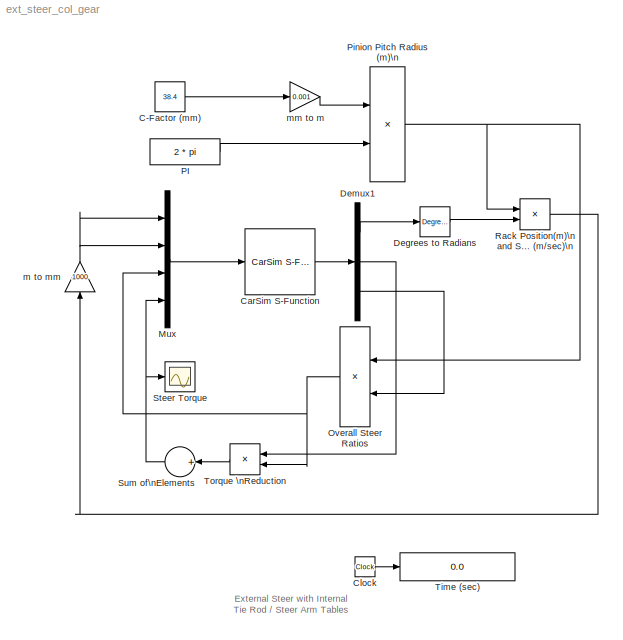
MODEL ext_steer_col_gear
KIND model
BLOCK [Constant] C-Factor (mm)
  SID = 45
  Value = 38.4
BLOCK [Reference] CarSim S-Function  REF=Solver_SF/CarSim S-Function
  Ports = [1, 1]
  Priority = 1
  SID = 19
  SIMFILE = simfile.sim
  SourceBlock = Solver_SF/CarSim S-Function
  SourceType = Vehicle math model library
BLOCK [Clock] Clock
  Decimation = 10
  SID = 20
BLOCK [Reference] Degrees to Radians  REF=simulink_extras/Transformations/Degrees to\nRadians
  FunctionWithSeparateData = off
  GeneratePreprocessorConditionals = off
  Ports = [1, 1]
  RTWMemSecDataConstants = Inherit from model
  RTWMemSecDataInternal = Inherit from model
  RTWMemSecDataParameters = Inherit from model
  RTWMemSecFuncExecute = Inherit from model
  RTWMemSecFuncInitTerm = Inherit from model
  SID = 66
  ShowPortLabels = FromPortIcon
  SourceBlock = simulink_extras/Transformations/Degrees to\nRadians
  SourceType = DegreesToRadians
  SystemSampleTime = -1
BLOCK [Demux] Demux1
  Outputs = [2 2 2]
  Ports = [1, 3]
  SID = 21
BLOCK [Mux] Mux
  DisplayOption = bar
  Inputs = [2 2 2 1]
  Ports = [4, 1]
  SID = 44
BLOCK [Product] Overall Steer Ratios
  InputSameDT = off
  Inputs = //
  OutDataTypeStr = Inherit: Inherit via internal rule
  Ports = [2, 1]
  RndMeth = Floor
  SID = 56
  SaturateOnIntegerOverflow = off
BLOCK [Constant] PI
  SID = 53
  Value = 2 * pi
BLOCK [Product] Pinion Pitch Radius (m)\n
  InputSameDT = off
  Inputs = */
  OutDataTypeStr = Inherit: Inherit via internal rule
  Ports = [2, 1]
  RndMeth = Floor
  SID = 46
  SaturateOnIntegerOverflow = off
BLOCK [Product] Rack Position(m)\n and Speed (m//sec)\n 
  InputSameDT = off
  OutDataTypeStr = Inherit: Inherit via internal rule
  Ports = [2, 1]
  RndMeth = Floor
  SID = 55
  SaturateOnIntegerOverflow = off
BLOCK [Scope] Steer Torque
  DataFormat = Array
  Floating = off
  LimitDataPoints = off
  NumInputPorts = 1
  Ports = [1]
  SID = 42
  TickLabels = on
  TimeRange = 7
  YMax = 4.71555
  YMin = -4.87193
BLOCK [Sum] Sum of\nElements
  InputSameDT = off
  Inputs = +
  OutDataTypeStr = Inherit: Inherit via internal rule
  Ports = [1, 1]
  SID = 75
  SaturateOnIntegerOverflow = off
BLOCK [Display] Time (sec)
  Decimation = 100
  Format = bank
  Lockdown = off
  Ports = [1]
  SID = 40
BLOCK [Product] Torque \nReduction
  InputSameDT = off
  Inputs = */
  OutDataTypeStr = Inherit: Inherit via internal rule
  Ports = [2, 1]
  RndMeth = Floor
  SID = 73
  SaturateOnIntegerOverflow = off
BLOCK [Gain] m to mm
  Gain = 1000
  OutDataTypeStr = Inherit: Inherit via internal rule
  ParamDataTypeStr = Inherit: Inherit via internal rule
  SID = 76
  SaturateOnIntegerOverflow = off
BLOCK [Gain] mm to m
  Gain = 0.001
  OutDataTypeStr = Inherit: Inherit via internal rule
  ParamDataTypeStr = Inherit: Inherit via internal rule
  SID = 68
  SaturateOnIntegerOverflow = off
ANNOTATION (root): External Steer with Internal \nTie Rod / Steer Arm Tables
LINE C-Factor (mm):1 -> mm to m:1
LINE CarSim S-Function:1 -> Demux1:1
LINE Clock:1 -> Time (sec):1
LINE Degrees to Radians:1 -> Rack Position(m)\n and Speed (m//sec)\n :2
LINE Demux1:1 -> Degrees to Radians:1
LINE Demux1:2 -> Torque \nReduction:1
LINE Demux1:3 -> Overall Steer Ratios:2
LINE Mux:1 -> CarSim S-Function:1
NET Overall Steer Ratios:1 -> Mux:3, Torque \nReduction:2
LINE PI:1 -> Pinion Pitch Radius (m)\n:2
NET Pinion Pitch Radius (m)\n:1 -> Overall Steer Ratios:1, Rack Position(m)\n and Speed (m//sec)\n :1
LINE Rack Position(m)\n and Speed (m//sec)\n :1 -> m to mm:1
NET Sum of\nElements:1 -> Mux:4, Steer Torque:1
LINE Torque \nReduction:1 -> Sum of\nElements:1
NET m to mm:1 -> Mux:1, Mux:2
LINE mm to m:1 -> Pinion Pitch Radius (m)\n:1
note: NET lines group one-source signal fan-out (src -> all destinations, sorted); 1:1 wires keep LINE
